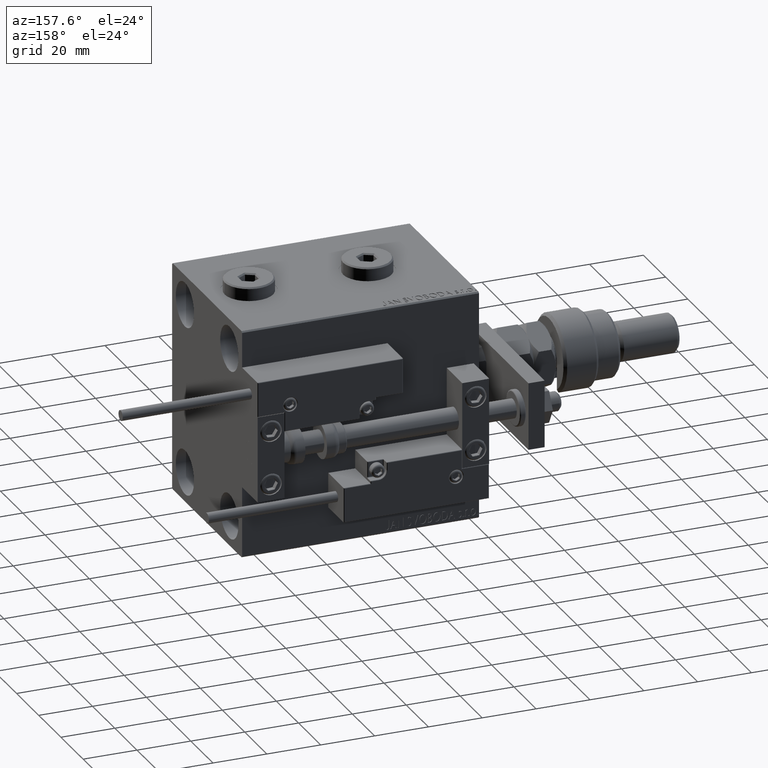
[diagram: clean part render]
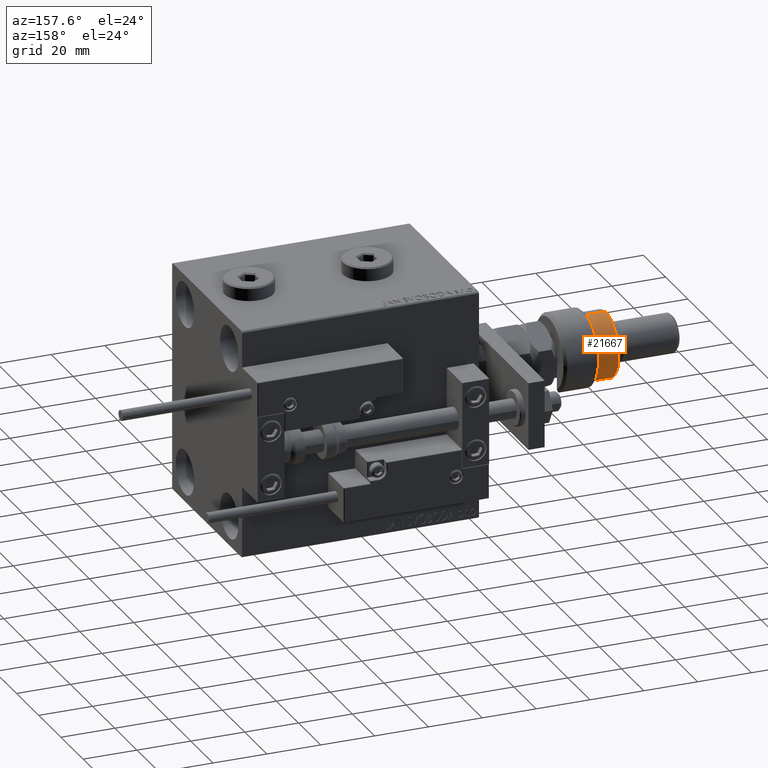
[diagram: same view with one face highlighted and labeled with its STEP entity id]
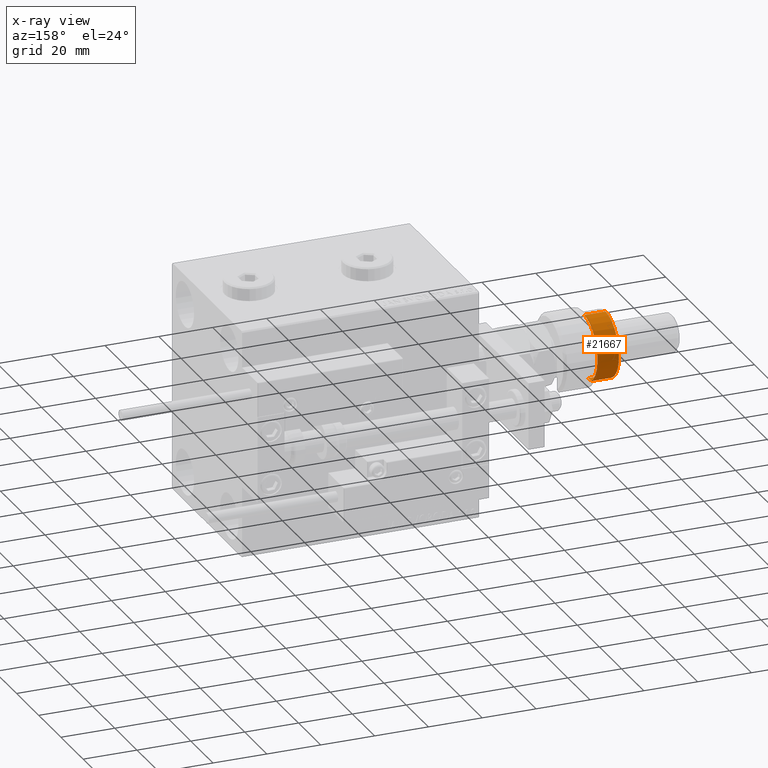
[diagram: x-ray of the same camera — body ghosted, the highlighted face saturated]
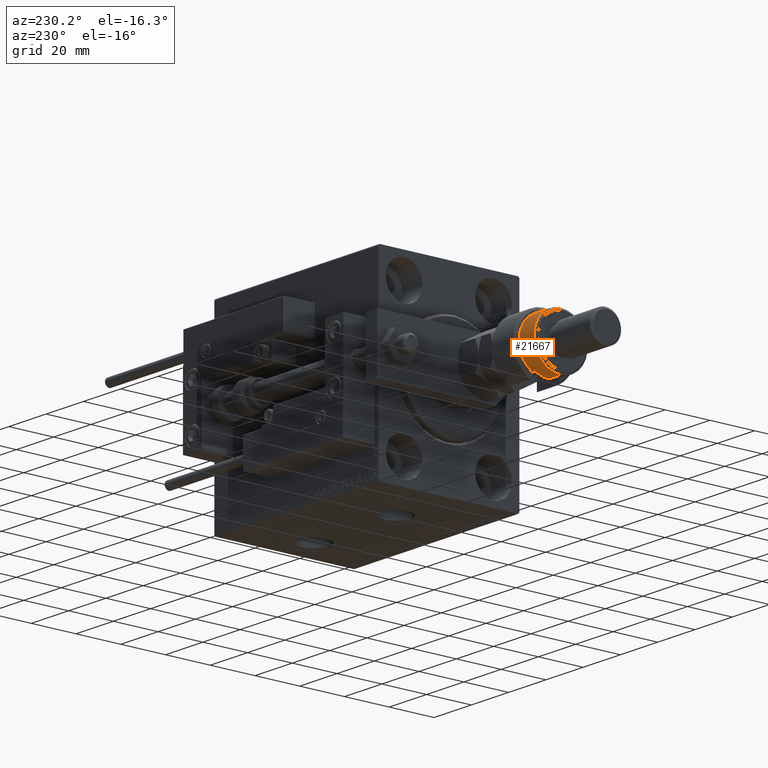
[diagram: same view with one face highlighted and labeled with its STEP entity id]
A machine part, auxiliary view. The second image highlights one B-rep face of the part: STEP entity #21667.
The next image is the same camera in x-ray: the body ghosted, the highlighted face saturated — about 0% of this face is hidden behind the body in this view.
A second angle (auxiliary view) of the same face is appended — the face is thin or edge-on in the first view.
In plain terms, the highlighted cylindrical surface (edge-blend (fillet) strip) has radius 12 mm, axis along (1, -0, -0).
Its self-contained STEP definition (entity closure, byte-faithful):
#336 = DIRECTION ( 'NONE',  ( 1.000000000000000000, 0.000000000000000000, 0.000000000000000000 ) ) ;
#3432 = DIRECTION ( 'NONE',  ( 0.000000000000000000, 0.000000000000000000, -1.000000000000000000 ) ) ;
#3667 = AXIS2_PLACEMENT_3D ( 'NONE', #53762, #12812, #54033 ) ;
#3868 = LINE ( 'NONE', #21472, #45742 ) ;
#5179 = EDGE_CURVE ( 'NONE', #17316, #41584, #10285, .T. ) ;
#6957 = VERTEX_POINT ( 'NONE', #20998 ) ;
#7261 = CARTESIAN_POINT ( 'NONE',  ( 12.00000000000000178, 1.469576158976824144E-15, 13.00000000000000000 ) ) ;
#7558 = CARTESIAN_POINT ( 'NONE',  ( 0.000000000000000000, 0.000000000000000000, 20.99999999999999645 ) ) ;
#7832 = DIRECTION ( 'NONE',  ( 1.000000000000000000, 0.000000000000000000, 0.000000000000000000 ) ) ;
#8099 = LINE ( 'NONE', #20743, #14056 ) ;
#9301 = EDGE_CURVE ( 'NONE', #6957, #17316, #37154, .T. ) ;
#10285 = CIRCLE ( 'NONE', #15561, 12.00000000000000178 ) ;
#10314 = VECTOR ( 'NONE', #24495, 1000.000000000000000 ) ;
#10412 = EDGE_LOOP ( 'NONE', ( #36707, #43585, #40429, #10521, #28875, #23472 ) ) ;
#10521 = ORIENTED_EDGE ( 'NONE', *, *, #37027, .T. ) ;
#11589 = CARTESIAN_POINT ( 'NONE',  ( 12.00000000000000178, 1.469576158976824144E-15, 22.00000000000000000 ) ) ;
#12530 = CARTESIAN_POINT ( 'NONE',  ( -12.00000000000000178, 0.000000000000000000, 20.99999999999999645 ) ) ;
#12812 = DIRECTION ( 'NONE',  ( -0.000000000000000000, -0.000000000000000000, -1.000000000000000000 ) ) ;
#13204 = AXIS2_PLACEMENT_3D ( 'NONE', #20263, #40608, #44168 ) ;
#14056 = VECTOR ( 'NONE', #37243, 1000.000000000000000 ) ;
#14492 = EDGE_CURVE ( 'NONE', #24550, #34675, #52683, .T. ) ;
#14883 = EDGE_CURVE ( 'NONE', #35408, #24550, #8099, .T. ) ;
#15561 = AXIS2_PLACEMENT_3D ( 'NONE', #50638, #22305, #336 ) ;
#17316 = VERTEX_POINT ( 'NONE', #7261 ) ;
#19524 = EDGE_CURVE ( 'NONE', #35408, #6957, #44781, .T. ) ;
#20263 = CARTESIAN_POINT ( 'NONE',  ( 0.000000000000000000, 0.000000000000000000, 14.50000000000000000 ) ) ;
#20743 = CARTESIAN_POINT ( 'NONE',  ( -12.00000000000000178, 0.000000000000000000, 22.00000000000000000 ) ) ;
#20998 = CARTESIAN_POINT ( 'NONE',  ( 12.00000000000000178, 1.469576158976824144E-15, 20.99999999999999645 ) ) ;
#21472 = CARTESIAN_POINT ( 'NONE',  ( -10.39230484541326760, 6.000000000000000000, 22.00000000000000000 ) ) ;
#21667 = ADVANCED_FACE ( 'NONE', ( #46060 ), #49358, .T. ) ;
#22305 = DIRECTION ( 'NONE',  ( 0.000000000000000000, 0.000000000000000000, 1.000000000000000000 ) ) ;
#23456 = CARTESIAN_POINT ( 'NONE',  ( -10.39230484541326760, 6.000000000000000000, 13.00000000000000000 ) ) ;
#23472 = ORIENTED_EDGE ( 'NONE', *, *, #14883, .F. ) ;
#24495 = DIRECTION ( 'NONE',  ( -0.000000000000000000, -0.000000000000000000, -1.000000000000000000 ) ) ;
#24550 = VERTEX_POINT ( 'NONE', #42258 ) ;
#28875 = ORIENTED_EDGE ( 'NONE', *, *, #14492, .F. ) ;
#28878 = CARTESIAN_POINT ( 'NONE',  ( -10.39230484541326582, 5.999999999999998224, 14.50000000000000000 ) ) ;
#34675 = VERTEX_POINT ( 'NONE', #28878 ) ;
#35408 = VERTEX_POINT ( 'NONE', #12530 ) ;
#36707 = ORIENTED_EDGE ( 'NONE', *, *, #19524, .T. ) ;
#37027 = EDGE_CURVE ( 'NONE', #41584, #34675, #3868, .T. ) ;
#37154 = LINE ( 'NONE', #11589, #10314 ) ;
#37243 = DIRECTION ( 'NONE',  ( -0.000000000000000000, -0.000000000000000000, -1.000000000000000000 ) ) ;
#40429 = ORIENTED_EDGE ( 'NONE', *, *, #5179, .T. ) ;
#40608 = DIRECTION ( 'NONE',  ( 0.000000000000000000, 0.000000000000000000, -1.000000000000000000 ) ) ;
#41584 = VERTEX_POINT ( 'NONE', #23456 ) ;
#42258 = CARTESIAN_POINT ( 'NONE',  ( -12.00000000000000178, 0.000000000000000000, 14.50000000000000000 ) ) ;
#43585 = ORIENTED_EDGE ( 'NONE', *, *, #9301, .T. ) ;
#44168 = DIRECTION ( 'NONE',  ( -1.000000000000000000, 0.000000000000000000, 0.000000000000000000 ) ) ;
#44781 = CIRCLE ( 'NONE', #51821, 12.00000000000000178 ) ;
#45374 = DIRECTION ( 'NONE',  ( 0.000000000000000000, 0.000000000000000000, 1.000000000000000000 ) ) ;
#45742 = VECTOR ( 'NONE', #45374, 1000.000000000000000 ) ;
#46060 = FACE_OUTER_BOUND ( 'NONE', #10412, .T. ) ;
#49358 = CYLINDRICAL_SURFACE ( 'NONE', #3667, 12.00000000000000178 ) ;
#50638 = CARTESIAN_POINT ( 'NONE',  ( 0.000000000000000000, 0.000000000000000000, 13.00000000000000000 ) ) ;
#51821 = AXIS2_PLACEMENT_3D ( 'NONE', #7558, #3432, #7832 ) ;
#52683 = CIRCLE ( 'NONE', #13204, 12.00000000000000178 ) ;
#53762 = CARTESIAN_POINT ( 'NONE',  ( 0.000000000000000000, 0.000000000000000000, 22.00000000000000000 ) ) ;
#54033 = DIRECTION ( 'NONE',  ( -1.000000000000000000, 0.000000000000000000, 0.000000000000000000 ) ) ;